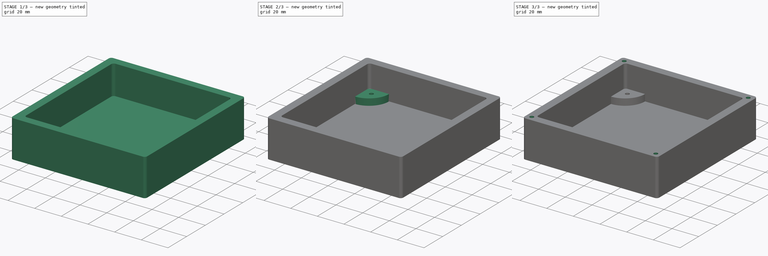
[diagram: build sequence overview — one tinted view per stage of 3, left to right]
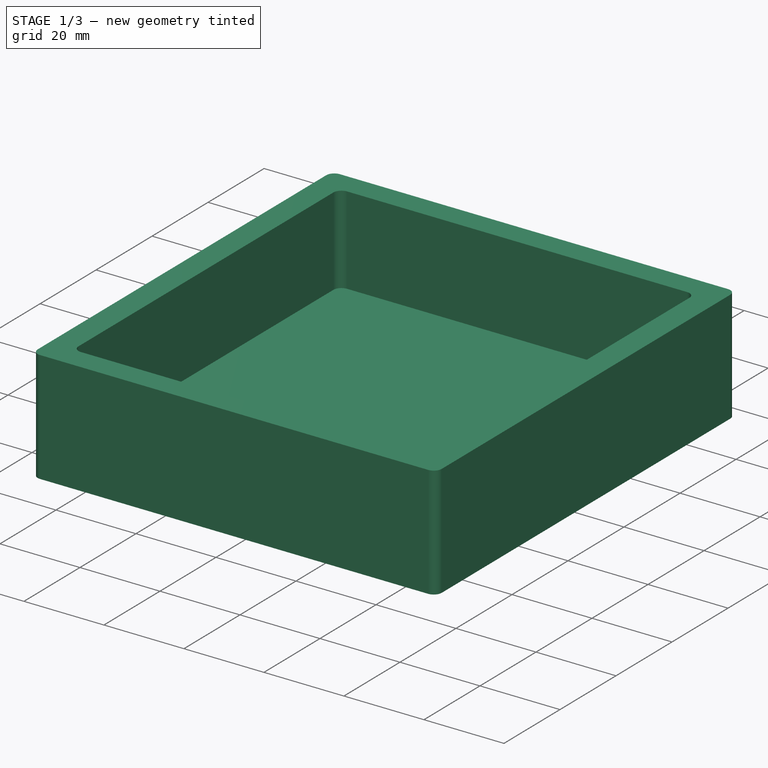
[diagram: stage 1 of 3 — iso view after this stage's code; geometry added in this stage tinted green]
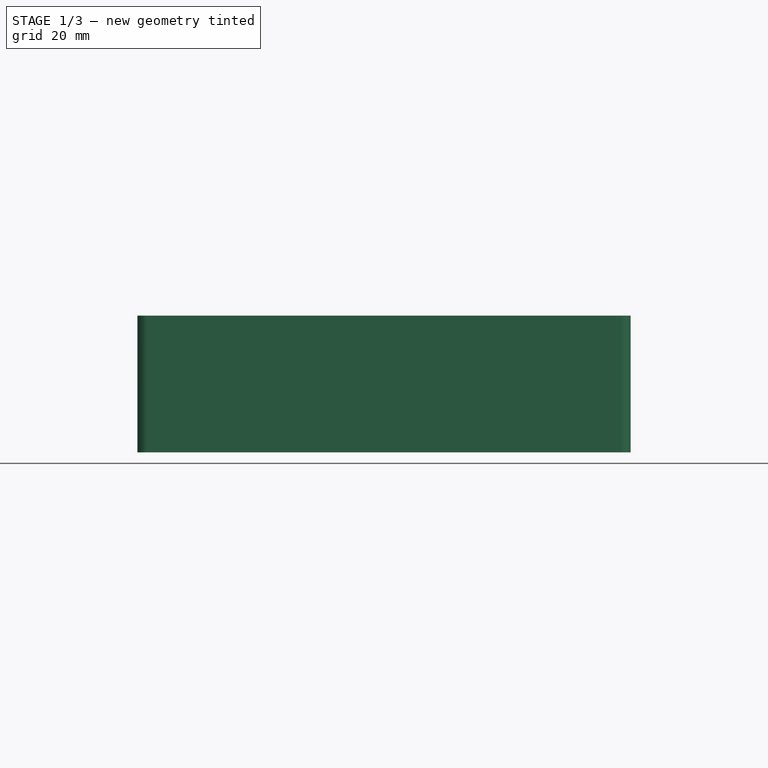
[diagram: stage 1 of 3 — front view after this stage's code; geometry added in this stage tinted green]
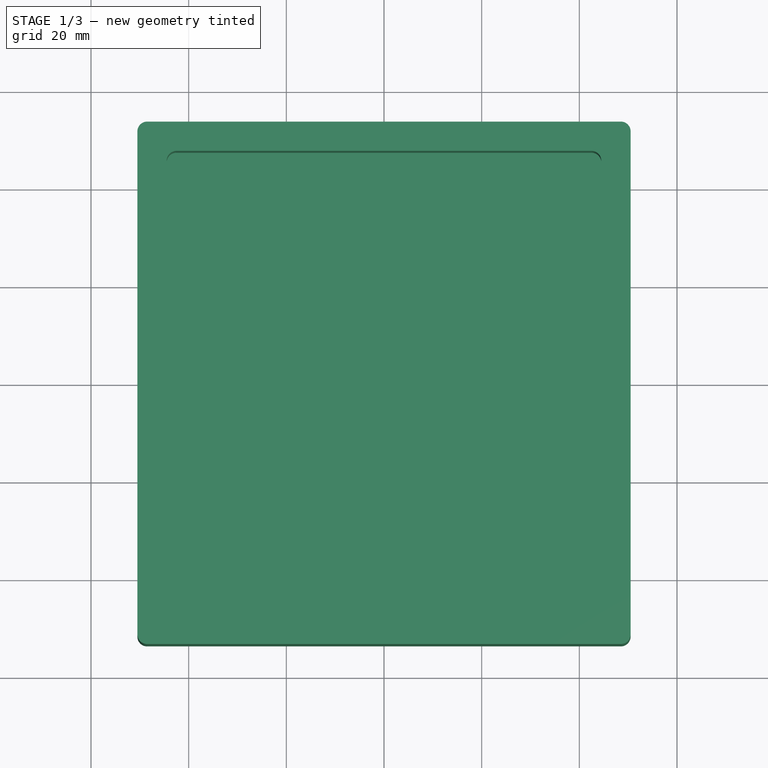
[diagram: stage 1 of 3 — top view after this stage's code; geometry added in this stage tinted green]
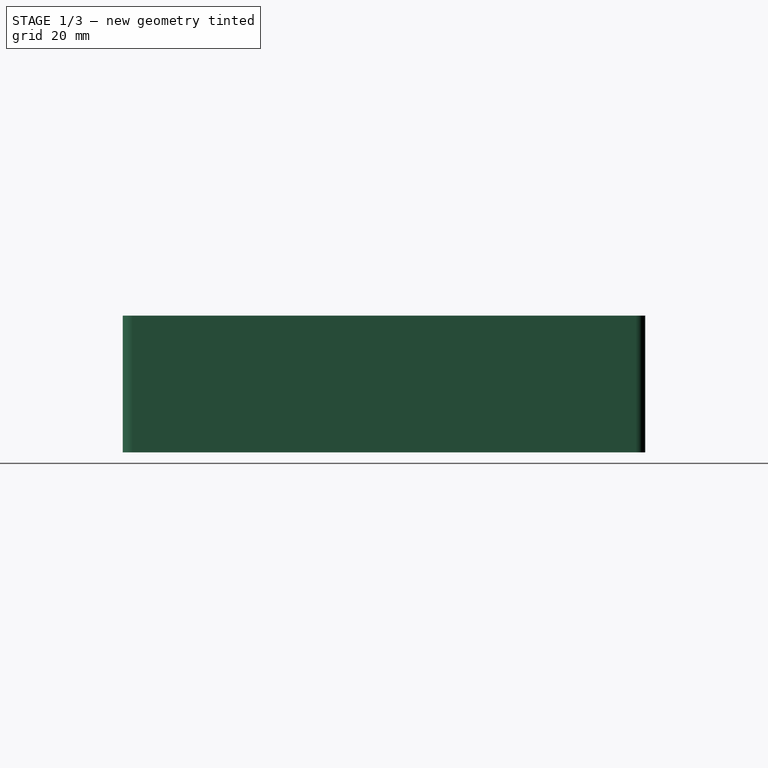
[diagram: stage 1 of 3 — right view after this stage's code; geometry added in this stage tinted green]
FCSTD DOCUMENT  (FreeCAD 0.19R24366 (Git))
Label: case
License: All rights reserved
LicenseURL: http://en.wikipedia.org/wiki/All_rights_reserved
objects: Sketcher::SketchObject×6, PartDesign::Mirrored×4, PartDesign::Body×2, PartDesign::Pad×2, PartDesign::Pocket×2, PartDesign::MultiTransform×2, Spreadsheet::Sheet×1
note: 22 computed .brp shape members not serialized (recipe doc carries the construction recipe); baked Part::Feature solids carry a one-line shape summary decoded from their .brp

FEATURE [Sketcher::SketchObject] Sketch
  AttachmentOffset = pos=(0,0,-6) rot=(0,0,1;0rad)
  FullyConstrained = true
  MapMode = 5
  Placement = pos=(0,0,-6) rot=(0,0,1;0rad)
  Support = -> [XY_Plane]
  expr: .AttachmentOffset.Base.z = -Spreadsheet.box_wall_thickness
FEATURE [PartDesign::Body] Body
  Group = -> [Sketch]
  Origin = -> Origin
FEATURE [Sketcher::SketchObject] Sketch001
  AttachmentOffset = pos=(0,0,-6) rot=(0,0,1;0rad)
  FullyConstrained = true
  MapMode = 5
  Placement = pos=(0,0,-6) rot=(0,0,1;0rad)
  Support = -> [XY_Plane001]
  expr: .AttachmentOffset.Base.z = -Spreadsheet.box_wall_thickness
  expr: Constraints[16] = Spreadsheet.outside_radius
  expr: Constraints[18] = Spreadsheet.box_length
  expr: Constraints[17] = Spreadsheet.box_width
  sketch-geometry (8):
    g0: LineSegment StartX=-48.5 StartY=53.5 StartZ=0 EndX=48.5 EndY=53.5 EndZ=0
    g1: LineSegment StartX=50.5 StartY=51.5 StartZ=0 EndX=50.5 EndY=-51.5 EndZ=0
    g2: LineSegment StartX=48.5 StartY=-53.5 StartZ=0 EndX=-48.5 EndY=-53.5 EndZ=0
    g3: LineSegment StartX=-50.5 StartY=-51.5 StartZ=0 EndX=-50.5 EndY=51.5 EndZ=0
    g4: ArcOfCircle CenterX=-48.5 CenterY=51.5 CenterZ=0 NormalX=0 NormalY=0 NormalZ=1 AngleXU=0 Radius=2 StartAngle=1.5708 EndAngle=3.14159
    g5: ArcOfCircle CenterX=48.5 CenterY=51.5 CenterZ=0 NormalX=0 NormalY=0 NormalZ=1 AngleXU=0 Radius=2 StartAngle=-2.9976e-12 EndAngle=1.5708
    g6: ArcOfCircle CenterX=48.5 CenterY=-51.5 CenterZ=0 NormalX=0 NormalY=0 NormalZ=1 AngleXU=0 Radius=2 StartAngle=4.71239 EndAngle=6.28319
    g7: ArcOfCircle CenterX=-48.5 CenterY=-51.5 CenterZ=0 NormalX=0 NormalY=0 NormalZ=1 AngleXU=0 Radius=2 StartAngle=3.14159 EndAngle=4.71239
  constraints (19):
    c: Horizontal(g0)
    c: Horizontal(g2)
    c: Vertical(g1)
    c: Vertical(g3)
    c: Tangent(g3,g4) = 1.5708
    c: Tangent(g0,g4) = 1.5708
    c: Tangent(g0,g5) = 1.5708
    c: Tangent(g1,g5) = 1.5708
    c: Tangent(g1,g6) = 1.5708
    c: Tangent(g2,g6) = 1.5708
    c: Tangent(g3,g7) = 1.5708
    c: Tangent(g2,g7) = 1.5708
    c: Equal(g4,g5)
    c: Equal(g5,g6)
    c: Equal(g6,g7)
    c: Symmetric(g4,g6,g-1)
    c: Radius(g4) = 2
    c: DistanceX(g3,g1) = 101
    c: DistanceY(g2,g0) = 107
FEATURE [PartDesign::Pad] Pad
  Direction = (1,1,1)
  Length = 28
  Length2 = 100
  Profile = -> Sketch001
  Refine = true
  Type = 0
  expr: Length = Spreadsheet.box_height
FEATURE [Spreadsheet::Sheet] Spreadsheet
  cells = A2=box_length; B2(box_length)=107; A3=box_width; B3(box_width)=101; A4=box_height; B4(box_height)=28; A5=outside_radius; B5(outside_radius)=2; A6=inside_radius; B6(inside_radius)=2; A7=box_wall_thickness; B7(box_wall_thickness)=6; A8=inside_hole_diameter; B8(inside_hole_diameter)=3; A9=outside_hole_diameter; B9(outside_hole_diameter)=3; A10=lug_height; B10(lug_height)=5; A11=lug_radius; B11(lug_radius)=15; A12=box_inside_length; B12(box_inside_length)==B2 - 2 * B7; A13=box_inside_width; B13(box_inside_width)==B3 - 2 * B7; A14=hole_center_length; B14(hole_center_length)==B12 / 2 - B16; A15=hole_center_width; B15(hole_center_width)==B13 / 2 - B16; A16=hole_distance_inner_wall; B16(hole_distance_inner_wall)=6; A17=outside_hole_depth; B17(outside_hole_depth)=5; A18=outside_hole_center_length; B18(outside_hole_center_length)==B2 / 2 - B7 / 2 - B20; A19=outside_hole_center_width; B19(outside_hole_center_width)==B3 / 2 - B7 / 2 - B20; A20=outside_hole_offset; B20=1
FEATURE [Sketcher::SketchObject] Sketch002
  FullyConstrained = true
  MapMode = 5
  Support = -> [XY_Plane001]
  expr: Constraints[17] = Spreadsheet.box_inside_width
  expr: Constraints[18] = Spreadsheet.box_inside_length
  expr: Constraints[16] = Spreadsheet.inside_radius
  sketch-geometry (8):
    g0: LineSegment StartX=42.5 StartY=47.5 StartZ=0 EndX=-42.5 EndY=47.5 EndZ=0
    g1: LineSegment StartX=-44.5 StartY=45.5 StartZ=0 EndX=-44.5 EndY=-45.5 EndZ=0
    g2: LineSegment StartX=-42.5 StartY=-47.5 StartZ=0 EndX=42.5 EndY=-47.5 EndZ=0
    g3: LineSegment StartX=44.5 StartY=-45.5 StartZ=0 EndX=44.5 EndY=45.5 EndZ=0
    g4: ArcOfCircle CenterX=-42.5 CenterY=45.5 CenterZ=0 NormalX=0 NormalY=0 NormalZ=1 AngleXU=0 Radius=2 StartAngle=1.5708 EndAngle=3.14159
    g5: ArcOfCircle CenterX=42.5 CenterY=45.5 CenterZ=0 NormalX=0 NormalY=0 NormalZ=1 AngleXU=0 Radius=2 StartAngle=-1.8e-15 EndAngle=1.5708
    g6: ArcOfCircle CenterX=42.5 CenterY=-45.5 CenterZ=0 NormalX=0 NormalY=0 NormalZ=1 AngleXU=0 Radius=2 StartAngle=4.71239 EndAngle=6.28319
    g7: ArcOfCircle CenterX=-42.5 CenterY=-45.5 CenterZ=0 NormalX=0 NormalY=0 NormalZ=1 AngleXU=0 Radius=2 StartAngle=3.14159 EndAngle=4.71239
  constraints (19):
    c: Horizontal(g0)
    c: Horizontal(g2)
    c: Vertical(g1)
    c: Vertical(g3)
    c: Tangent(g1,g4) = -1.5708
    c: Tangent(g0,g4) = -1.5708
    c: Tangent(g0,g5) = -1.5708
    c: Tangent(g3,g5) = -1.5708
    c: Tangent(g2,g6) = -1.5708
    c: Tangent(g3,g6) = -1.5708
    c: Tangent(g1,g7) = -1.5708
    c: Tangent(g2,g7) = -1.5708
    c: Symmetric(g4,g6,g-1)
    c: Equal(g4,g5)
    c: Equal(g5,g6)
    c: Equal(g6,g7)
    c: Radius(g4) = 2
    c: DistanceX(g1,g3) = 89
    c: DistanceY(g2,g0) = 95
FEATURE [PartDesign::Pocket] Pocket
  BaseFeature = -> Pad
  Length = 5
  Length2 = 100
  Profile = -> Sketch002
  Refine = true
  Reversed = true
  Type = 1
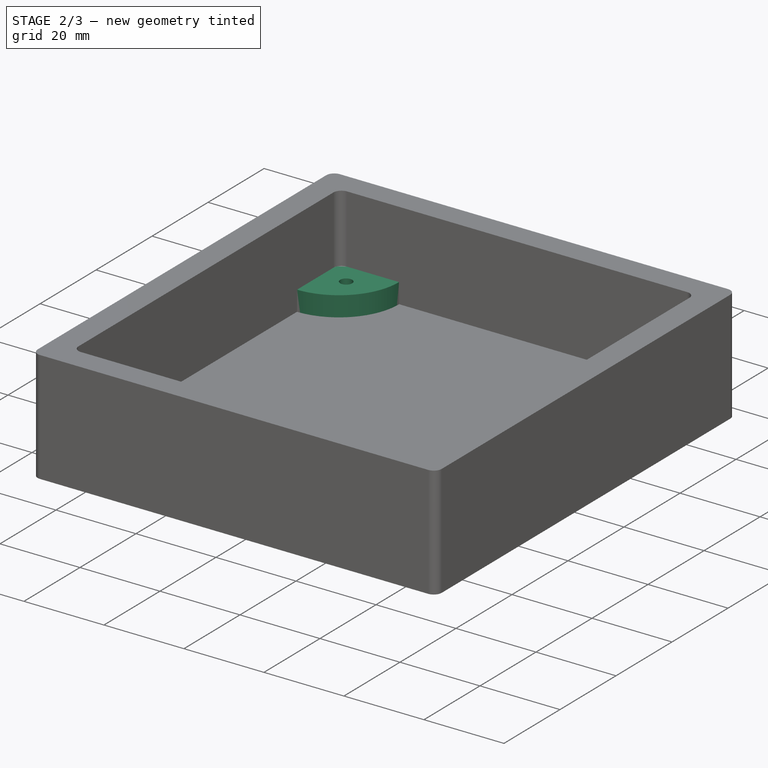
[diagram: stage 2 of 3 — iso view after this stage's code; geometry added in this stage tinted green]
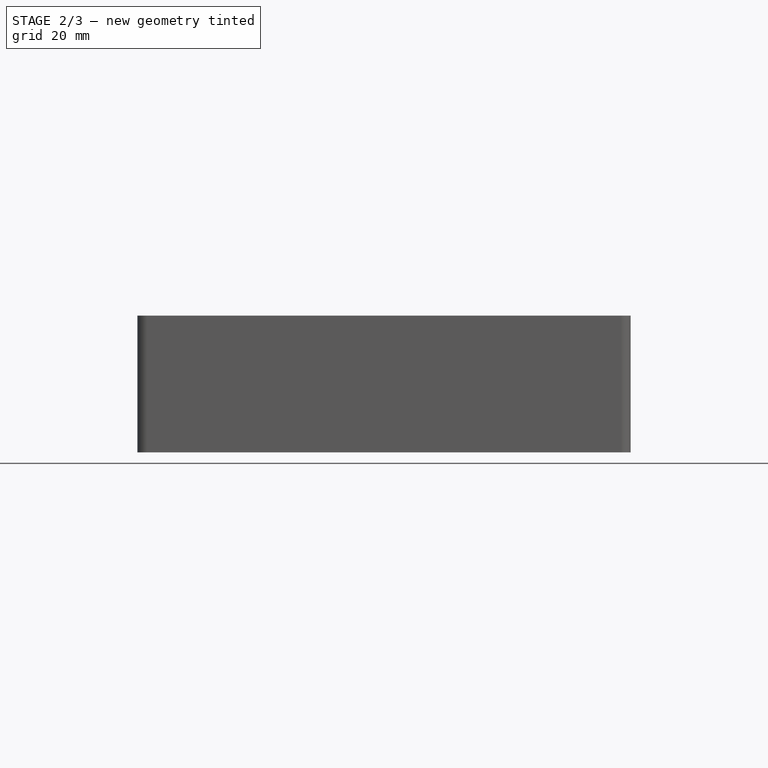
[diagram: stage 2 of 3 — front view after this stage's code; geometry added in this stage tinted green]
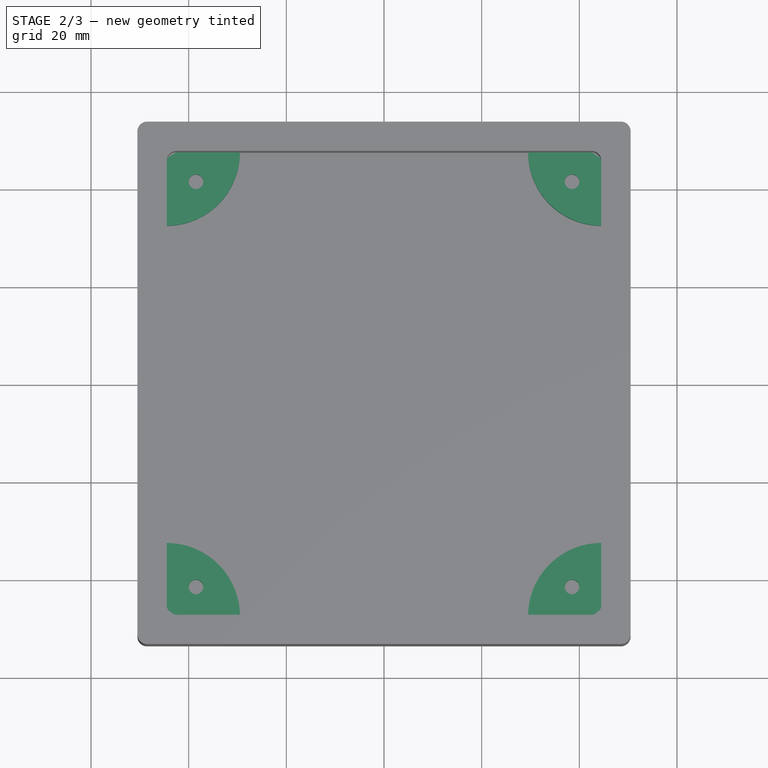
[diagram: stage 2 of 3 — top view after this stage's code; geometry added in this stage tinted green]
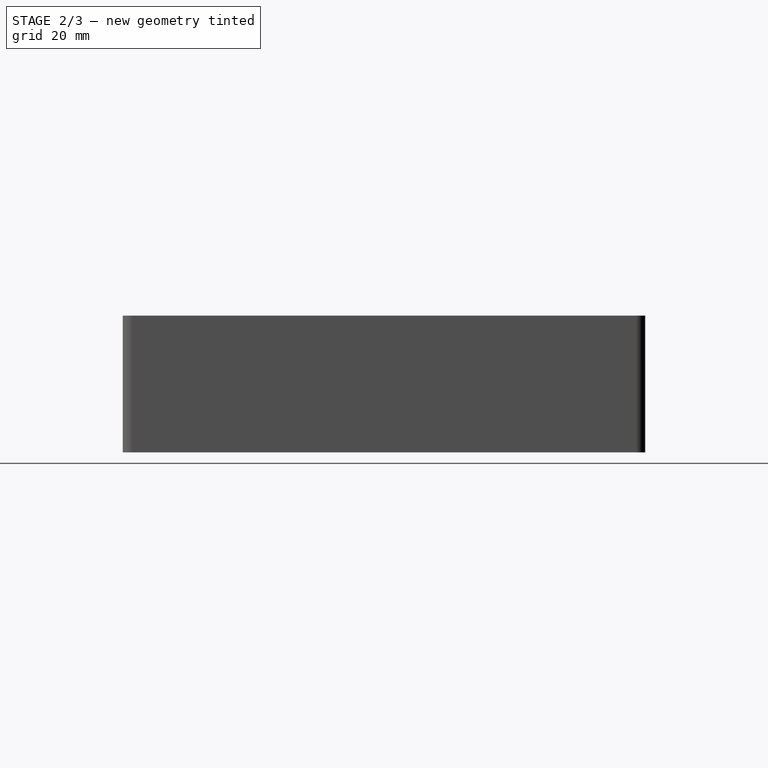
[diagram: stage 2 of 3 — right view after this stage's code; geometry added in this stage tinted green]
FEATURE [Sketcher::SketchObject] Sketch003
  FullyConstrained = true
  MapMode = 5
  Support = -> [XY_Plane001]
FEATURE [Sketcher::SketchObject] Sketch004
  FullyConstrained = true
  MapMode = 5
  Support = -> [XY_Plane001]
  expr: Constraints[11] = Spreadsheet.hole_center_length
  expr: Constraints[10] = Spreadsheet.hole_center_width
  expr: Constraints[8] = Spreadsheet.hole_distance_inner_wall
  expr: Constraints[7] = Spreadsheet.hole_distance_inner_wall
  expr: Constraints[6] = Spreadsheet.lug_radius
  expr: Constraints[5] = Spreadsheet.inside_hole_diameter
  sketch-geometry (4):
    g0: LineSegment StartX=-44.5 StartY=47.5 StartZ=0 EndX=-29.5 EndY=47.5 EndZ=0
    g1: LineSegment StartX=-44.5 StartY=47.5 StartZ=0 EndX=-44.5 EndY=32.5 EndZ=0
    g2: ArcOfCircle CenterX=-44.5 CenterY=47.5 CenterZ=0 NormalX=0 NormalY=0 NormalZ=1 AngleXU=0 Radius=15 StartAngle=4.71239 EndAngle=6.28319
    g3: Circle CenterX=-38.5 CenterY=41.5 CenterZ=0 NormalX=0 NormalY=0 NormalZ=1 AngleXU=0 Radius=1.5
  constraints (12):
    c: Horizontal(g0)
    c: Coincident(g1,g0)
    c: Coincident(g2,g0)
    c: Coincident(g2,g0)
    c: Coincident(g2,g1)
    c: Diameter(g3) = 3
    c: Radius(g2) = 15
    c: DistanceY(g3,g0) = 6
    c: DistanceX(g0,g3) = 6
    c: Perpendicular(g0,g1)
    c: DistanceX(g3,g-1) = 38.5
    c: DistanceY(g-1,g3) = 41.5
FEATURE [PartDesign::Pad] Pad001
  BaseFeature = -> Pocket
  Direction = (1,1,1)
  Length = 5
  Length2 = 100
  Profile = -> Sketch004
  Refine = true
  Type = 0
  expr: Length = Spreadsheet.lug_height
FEATURE [PartDesign::Mirrored] Mirrored
  MirrorPlane = -> Sketch004 [V_Axis]
  Refine = true
FEATURE [PartDesign::Mirrored] Mirrored001
  MirrorPlane = -> Sketch004 [H_Axis]
  Refine = true
FEATURE [PartDesign::MultiTransform] MultiTransform
  BaseFeature = -> Pad001
  Originals = -> [Pad001]
  Refine = true
  Transformations = -> [Mirrored,Mirrored001]
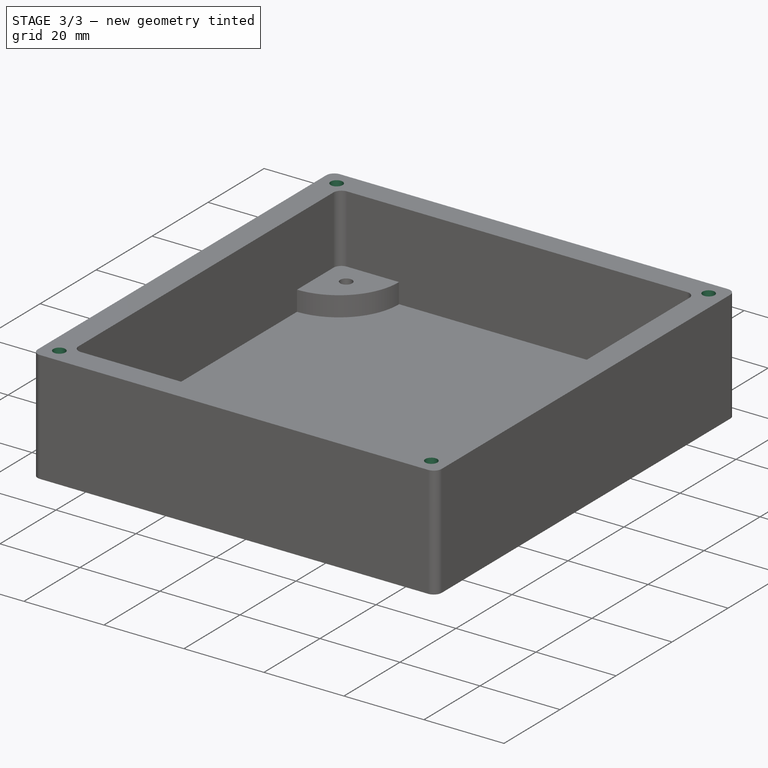
[diagram: stage 3 of 3 — iso view after this stage's code; geometry added in this stage tinted green]
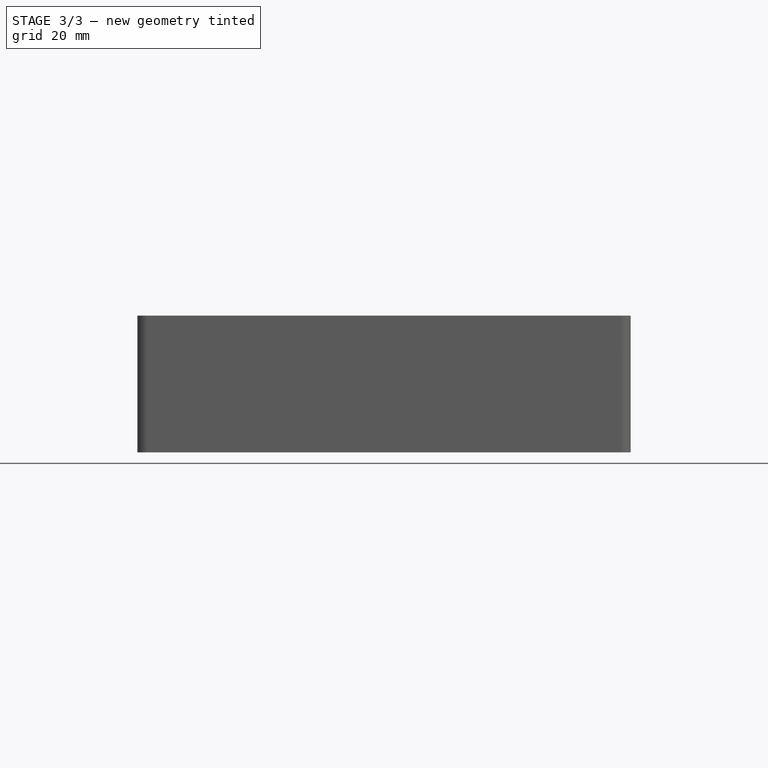
[diagram: stage 3 of 3 — front view after this stage's code; geometry added in this stage tinted green]
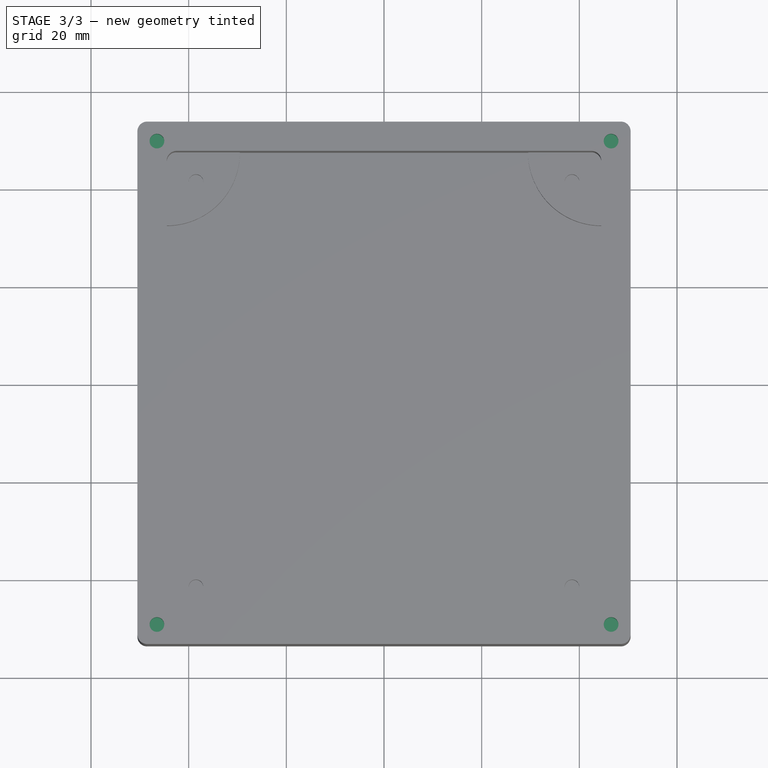
[diagram: stage 3 of 3 — top view after this stage's code; geometry added in this stage tinted green]
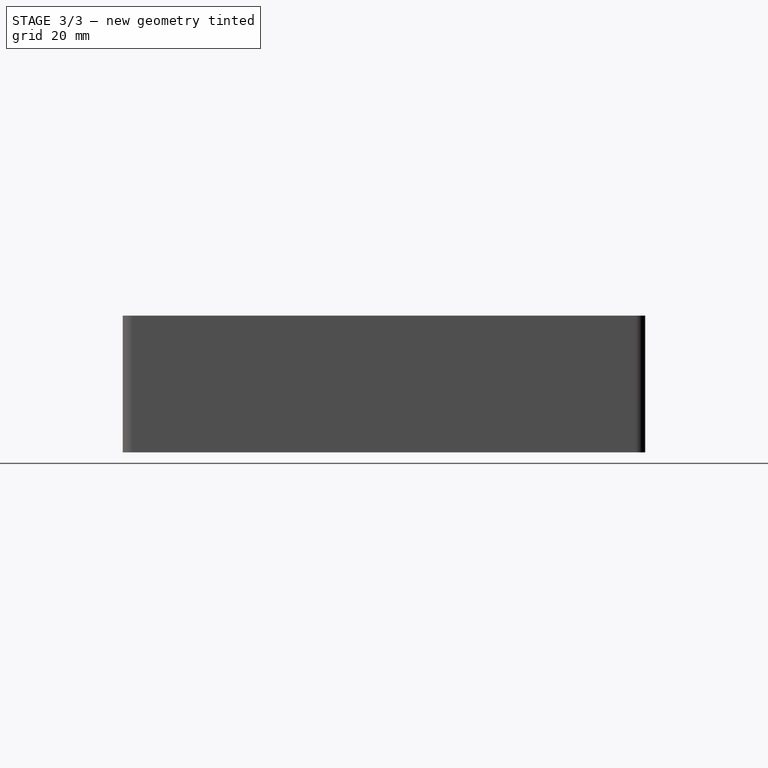
[diagram: stage 3 of 3 — right view after this stage's code; geometry added in this stage tinted green]
FEATURE [Sketcher::SketchObject] Sketch005
  AttachmentOffset = pos=(0,0,22) rot=(0,0,1;0rad)
  FullyConstrained = true
  MapMode = 5
  Placement = pos=(0,0,22) rot=(0,0,1;0rad)
  Support = -> [XY_Plane001]
  expr: .AttachmentOffset.Base.z = Spreadsheet.box_height - Spreadsheet.box_wall_thickness
  expr: Constraints[2] = Spreadsheet.outside_hole_center_width
  expr: Constraints[1] = Spreadsheet.outside_hole_center_length
  expr: Constraints[0] = Spreadsheet.outside_hole_diameter
  sketch-geometry (1):
    g0: Circle CenterX=-46.5 CenterY=49.5 CenterZ=0 NormalX=0 NormalY=0 NormalZ=1 AngleXU=0 Radius=1.5
  constraints (3):
    c: Diameter(g0) = 3
    c: DistanceY(g-1,g0) = 49.5
    c: DistanceX(g0,g-1) = 46.5
FEATURE [PartDesign::Pocket] Pocket001
  BaseFeature = -> MultiTransform
  Length = 5
  Length2 = 100
  Profile = -> Sketch005
  Refine = true
  Type = 0
  expr: Length = Spreadsheet.outside_hole_depth
FEATURE [PartDesign::Mirrored] Mirrored002
  MirrorPlane = -> Sketch005 [V_Axis]
  Refine = true
FEATURE [PartDesign::Mirrored] Mirrored003
  MirrorPlane = -> Sketch005 [H_Axis]
  Refine = true
FEATURE [PartDesign::MultiTransform] MultiTransform001
  BaseFeature = -> Pocket001
  Originals = -> [Pocket001]
  Refine = true
  Transformations = -> [Mirrored002,Mirrored003]
FEATURE [PartDesign::Body] Body001
  Group = -> [Sketch001,Pad,Sketch002,Pocket,Sketch003,Sketch004,Pad001,MultiTransform,Mirrored,Mirrored001,Sketch005,Pocket001,MultiTransform001,Mirrored002,Mirrored003]
  Origin = -> Origin001
  Tip = -> MultiTransform001
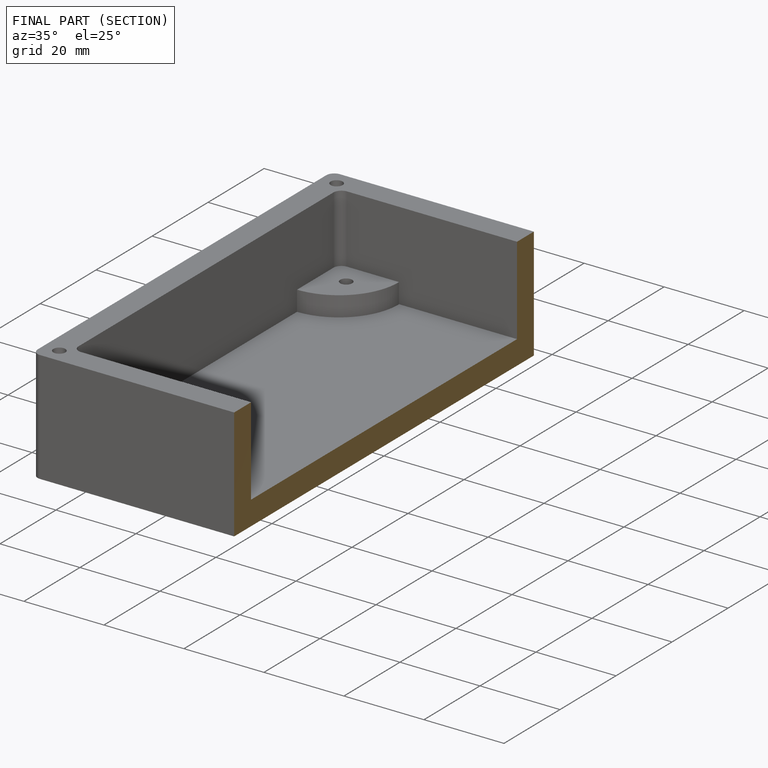
[diagram: finished part — half-section view (interior)]
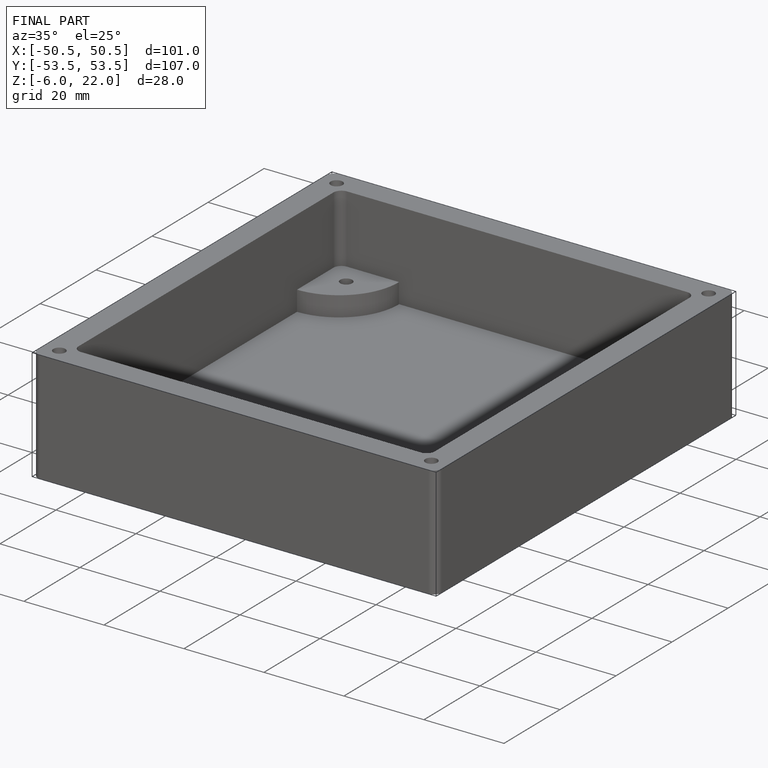
[diagram: finished part — iso view with bounding-box wireframe]
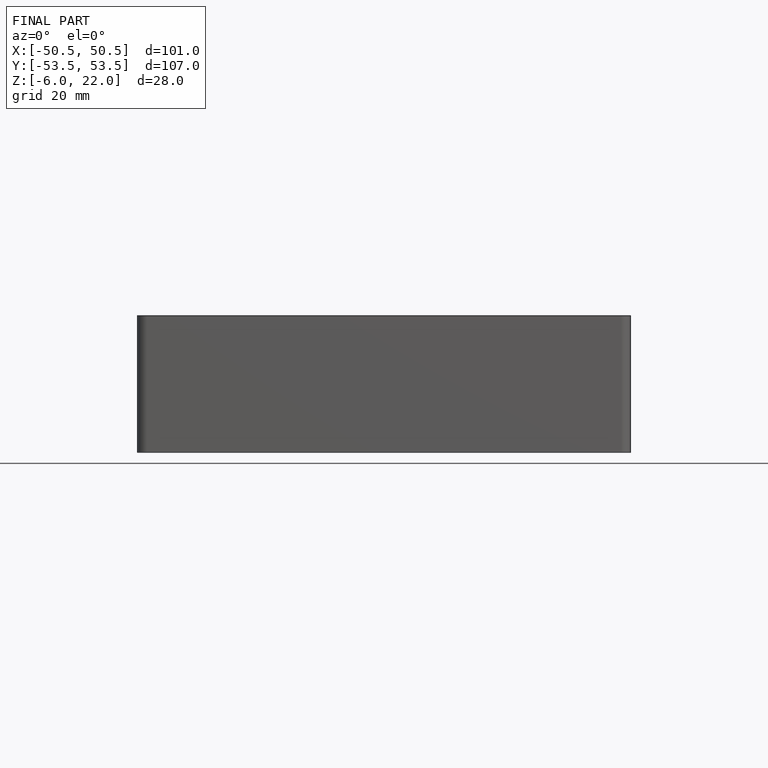
[diagram: finished part — front view with bounding-box wireframe]
